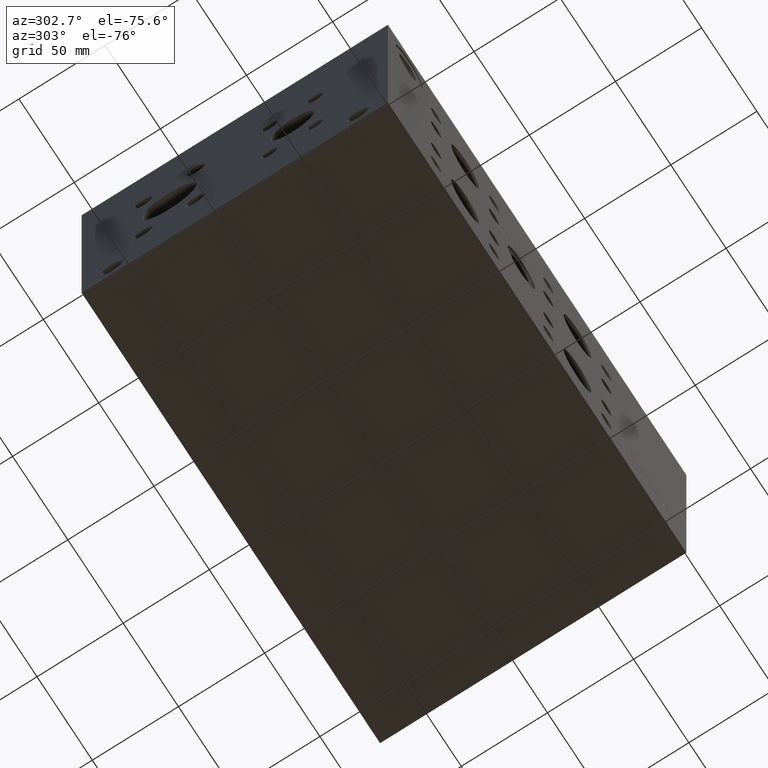
[diagram: clean part render]
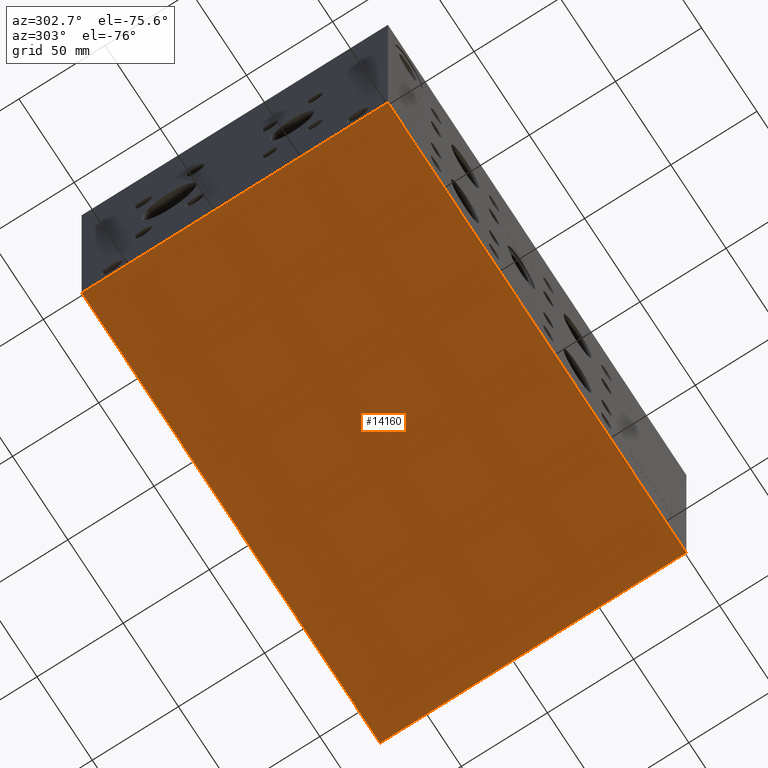
[diagram: same view with one face highlighted and labeled with its STEP entity id]
A machine part, auxiliary view. The second image highlights one B-rep face of the part: STEP entity #14160.
In plain terms, the highlighted planar face has unit normal (0, 0, 1).
Its self-contained STEP definition (entity closure, byte-faithful):
#1262=PLANE('',#15252);
#1995=FACE_OUTER_BOUND('',#2899,.T.);
#2899=EDGE_LOOP('',(#12854,#12855,#12856,#12857));
#2932=LINE('',#18866,#4182);
#2992=LINE('',#19173,#4242);
#3314=LINE('',#20742,#4564);
#4148=LINE('',#24242,#5398);
#4182=VECTOR('',#15307,10.);
#4242=VECTOR('',#15453,10.);
#4564=VECTOR('',#16025,10.);
#5398=VECTOR('',#18651,10.);
#5666=VERTEX_POINT('',#18864);
#5667=VERTEX_POINT('',#18865);
#5742=VERTEX_POINT('',#19171);
#5743=VERTEX_POINT('',#19172);
#7068=EDGE_CURVE('',#5666,#5667,#2932,.T.);
#7168=EDGE_CURVE('',#5742,#5743,#2992,.T.);
#7616=EDGE_CURVE('',#5743,#5666,#3314,.T.);
#8964=EDGE_CURVE('',#5667,#5742,#4148,.T.);
#12854=ORIENTED_EDGE('',*,*,#7616,.F.);
#12855=ORIENTED_EDGE('',*,*,#7168,.F.);
#12856=ORIENTED_EDGE('',*,*,#8964,.F.);
#12857=ORIENTED_EDGE('',*,*,#7068,.F.);
#14160=ADVANCED_FACE('',(#1995),#1262,.F.);
#15252=AXIS2_PLACEMENT_3D('',#24247,#18659,#18660);
#15307=DIRECTION('',(0.,1.,0.));
#15453=DIRECTION('',(0.,-1.,0.));
#16025=DIRECTION('',(1.,0.,0.));
#18651=DIRECTION('',(-1.,0.,0.));
#18659=DIRECTION('center_axis',(0.,0.,1.));
#18660=DIRECTION('ref_axis',(1.,0.,0.));
#18864=CARTESIAN_POINT('',(269.875,0.,0.));
#18865=CARTESIAN_POINT('',(269.875,177.8,0.));
#18866=CARTESIAN_POINT('',(269.875,0.,0.));
#19171=CARTESIAN_POINT('',(0.,177.8,0.));
#19172=CARTESIAN_POINT('',(0.,0.,0.));
#19173=CARTESIAN_POINT('',(0.,177.8,0.));
#20742=CARTESIAN_POINT('',(0.,0.,0.));
#24242=CARTESIAN_POINT('',(269.875,177.8,0.));
#24247=CARTESIAN_POINT('Origin',(134.9375,88.9,0.));